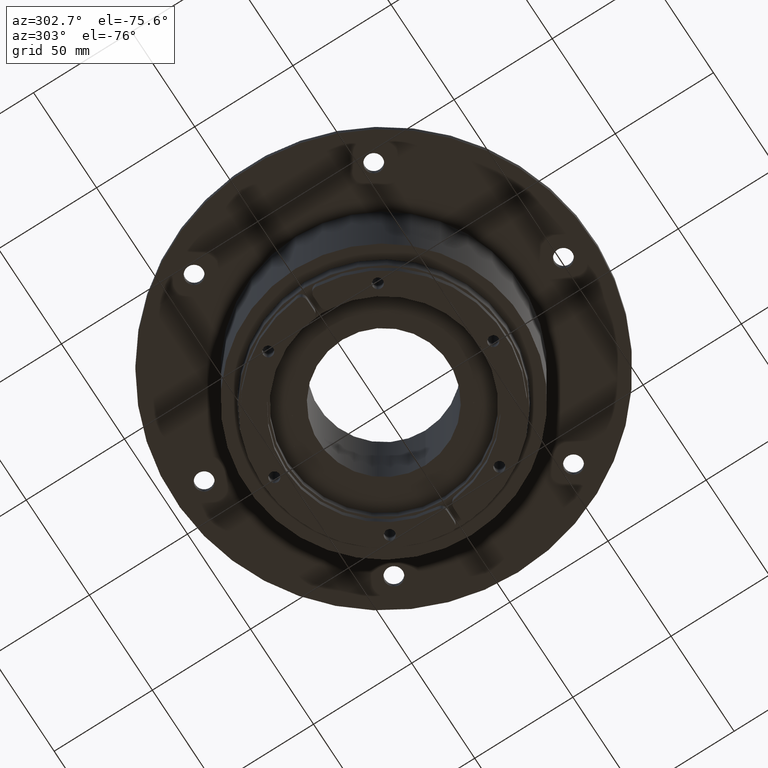
[diagram: clean part render]
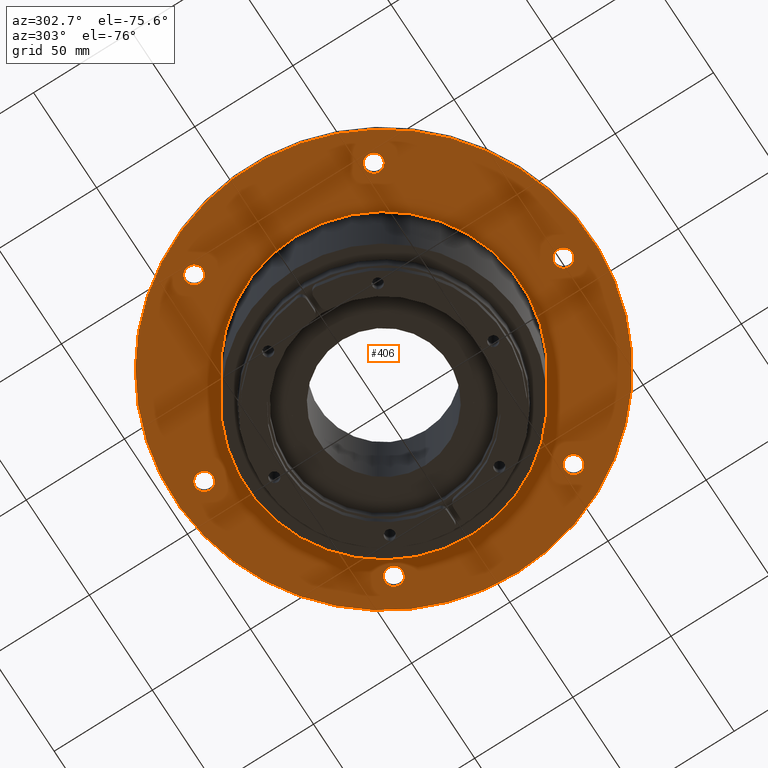
[diagram: same view with one face highlighted and labeled with its STEP entity id]
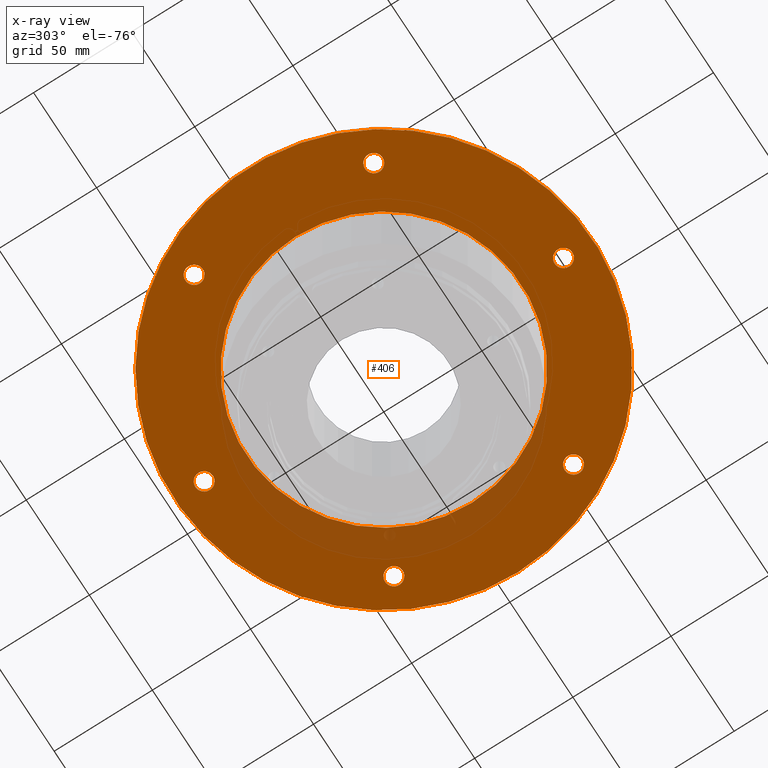
[diagram: x-ray of the same camera — body ghosted, the highlighted face saturated]
A machine part, auxiliary view. The second image highlights one B-rep face of the part: STEP entity #406.
The next image is the same camera in x-ray: the body ghosted, the highlighted face saturated — about 10% of this face is hidden behind the body in this view.
In plain terms, the highlighted planar face has unit normal (0, 0, 1).
Its self-contained STEP definition (entity closure, byte-faithful):
#246=CARTESIAN_POINT('',(76.991324446276195,49.64711431702991,-10.0));
#247=VERTEX_POINT('',#246);
#248=CARTESIAN_POINT('',(79.241324446276181,45.749999999999943,-10.0));
#249=DIRECTION('',(0.0,0.0,1.0));
#250=DIRECTION('',(0.499999999999999,-0.866025403784439,0.0));
#251=AXIS2_PLACEMENT_3D('',#248,#249,#250);
#252=CIRCLE('',#251,4.5);
#253=EDGE_CURVE('',#247,#247,#252,.T.);
#266=CARTESIAN_POINT('',(81.49132444627611,-41.852885682970069,-10.0));
#267=VERTEX_POINT('',#266);
#268=CARTESIAN_POINT('',(79.24132444627611,-45.750000000000036,-10.0));
#269=DIRECTION('',(0.0,0.0,1.0));
#270=DIRECTION('',(-0.5,-0.866025403784438,0.0));
#271=AXIS2_PLACEMENT_3D('',#268,#269,#270);
#272=CIRCLE('',#271,4.5);
#273=EDGE_CURVE('',#267,#267,#272,.T.);
#286=CARTESIAN_POINT('',(4.499999999999975,-91.500000000000028,-10.0));
#287=VERTEX_POINT('',#286);
#288=CARTESIAN_POINT('',(-1.776357E-014,-91.500000000000028,-10.0));
#289=DIRECTION('',(0.0,0.0,1.0));
#290=DIRECTION('',(-1.0,0.0,0.0));
#291=AXIS2_PLACEMENT_3D('',#288,#289,#290);
#292=CIRCLE('',#291,4.500000000000001);
#293=EDGE_CURVE('',#287,#287,#292,.T.);
#306=CARTESIAN_POINT('',(-76.991324446276153,-49.647114317029946,-10.0));
#307=VERTEX_POINT('',#306);
#308=CARTESIAN_POINT('',(-79.241324446276153,-45.749999999999972,-10.0));
#309=DIRECTION('',(0.0,0.0,1.0));
#310=DIRECTION('',(-0.5,0.866025403784439,0.0));
#311=AXIS2_PLACEMENT_3D('',#308,#309,#310);
#312=CIRCLE('',#311,4.5);
#313=EDGE_CURVE('',#307,#307,#312,.T.);
#326=CARTESIAN_POINT('',(-81.491324446276124,41.85288568297004,-10.0));
#327=VERTEX_POINT('',#326);
#328=CARTESIAN_POINT('',(-79.241324446276138,45.750000000000014,-10.0));
#329=DIRECTION('',(0.0,0.0,1.0));
#330=DIRECTION('',(0.5,0.866025403784439,0.0));
#331=AXIS2_PLACEMENT_3D('',#328,#329,#330);
#332=CIRCLE('',#331,4.5);
#333=EDGE_CURVE('',#327,#327,#332,.T.);
#346=CARTESIAN_POINT('',(-4.5,91.5,-10.0));
#347=VERTEX_POINT('',#346);
#348=CARTESIAN_POINT('',(0.0,91.5,-10.0));
#349=DIRECTION('',(0.0,0.0,1.0));
#350=DIRECTION('',(1.0,0.0,0.0));
#351=AXIS2_PLACEMENT_3D('',#348,#349,#350);
#352=CIRCLE('',#351,4.5);
#353=EDGE_CURVE('',#347,#347,#352,.T.);
#361=CARTESIAN_POINT('',(-5.534716E-015,-2.223921E-015,-10.0));
#362=DIRECTION('',(0.0,0.0,1.0));
#363=DIRECTION('',(1.0,0.0,0.0));
#364=AXIS2_PLACEMENT_3D('',#361,#362,#363);
#365=PLANE('',#364);
#366=CARTESIAN_POINT('',(106.5,1.304249E-014,-10.0));
#367=VERTEX_POINT('',#366);
#368=CARTESIAN_POINT('',(0.0,0.0,-10.0));
#369=DIRECTION('',(0.0,0.0,-1.0));
#370=DIRECTION('',(-1.0,0.0,0.0));
#371=AXIS2_PLACEMENT_3D('',#368,#369,#370);
#372=CIRCLE('',#371,106.5);
#373=EDGE_CURVE('',#367,#367,#372,.T.);
#374=ORIENTED_EDGE('',*,*,#373,.T.);
#375=EDGE_LOOP('',(#374));
#376=FACE_OUTER_BOUND('',#375,.T.);
#377=ORIENTED_EDGE('',*,*,#253,.T.);
#378=EDGE_LOOP('',(#377));
#379=FACE_BOUND('',#378,.T.);
#380=ORIENTED_EDGE('',*,*,#273,.T.);
#381=EDGE_LOOP('',(#380));
#382=FACE_BOUND('',#381,.T.);
#383=ORIENTED_EDGE('',*,*,#293,.T.);
#384=EDGE_LOOP('',(#383));
#385=FACE_BOUND('',#384,.T.);
#386=ORIENTED_EDGE('',*,*,#313,.T.);
#387=EDGE_LOOP('',(#386));
#388=FACE_BOUND('',#387,.T.);
#389=ORIENTED_EDGE('',*,*,#333,.T.);
#390=EDGE_LOOP('',(#389));
#391=FACE_BOUND('',#390,.T.);
#392=ORIENTED_EDGE('',*,*,#353,.T.);
#393=EDGE_LOOP('',(#392));
#394=FACE_BOUND('',#393,.T.);
#395=CARTESIAN_POINT('',(70.0,8.572528E-015,-10.0));
#396=VERTEX_POINT('',#395);
#397=CARTESIAN_POINT('',(0.0,0.0,-10.0));
#398=DIRECTION('',(0.0,0.0,-1.0));
#399=DIRECTION('',(-1.0,0.0,0.0));
#400=AXIS2_PLACEMENT_3D('',#397,#398,#399);
#401=CIRCLE('',#400,70.0);
#402=EDGE_CURVE('',#396,#396,#401,.T.);
#403=ORIENTED_EDGE('',*,*,#402,.F.);
#404=EDGE_LOOP('',(#403));
#405=FACE_BOUND('',#404,.T.);
#406=ADVANCED_FACE('',(#376,#379,#382,#385,#388,#391,#394,#405),#365,.F.);